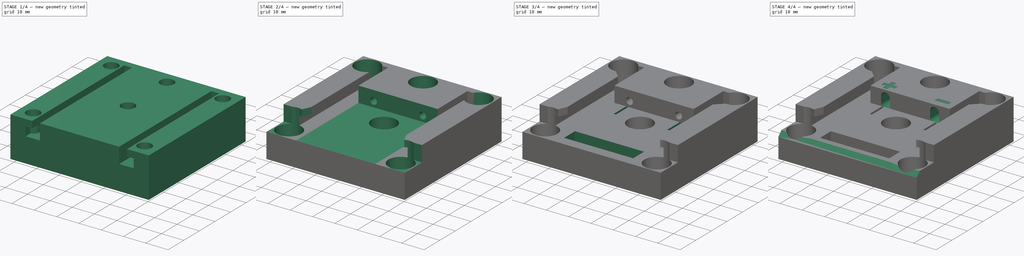
[diagram: build sequence overview — one tinted view per stage of 4, left to right]
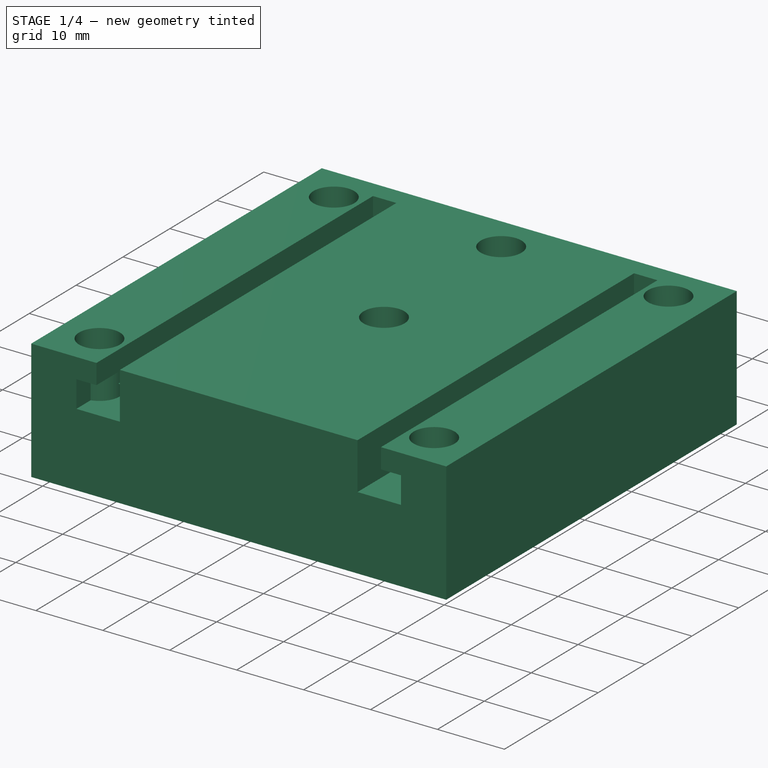
[diagram: stage 1 of 4 — iso view after this stage's code; geometry added in this stage tinted green]
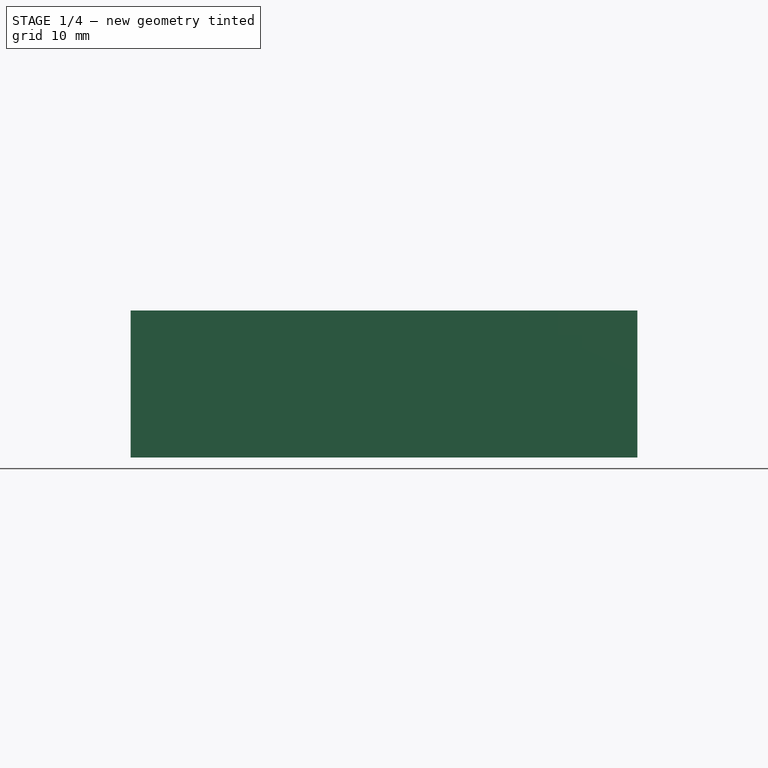
[diagram: stage 1 of 4 — front view after this stage's code; geometry added in this stage tinted green]
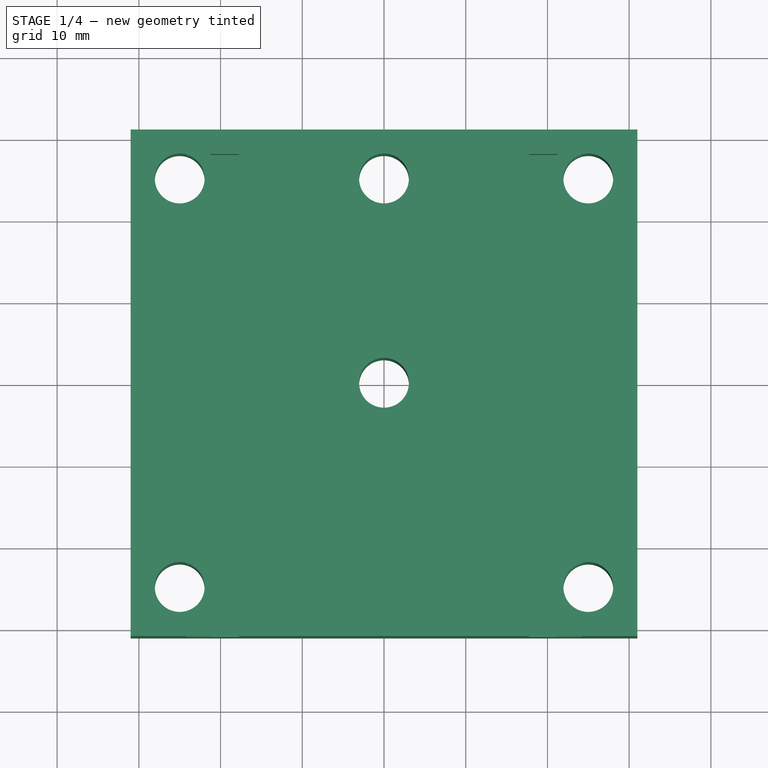
[diagram: stage 1 of 4 — top view after this stage's code; geometry added in this stage tinted green]
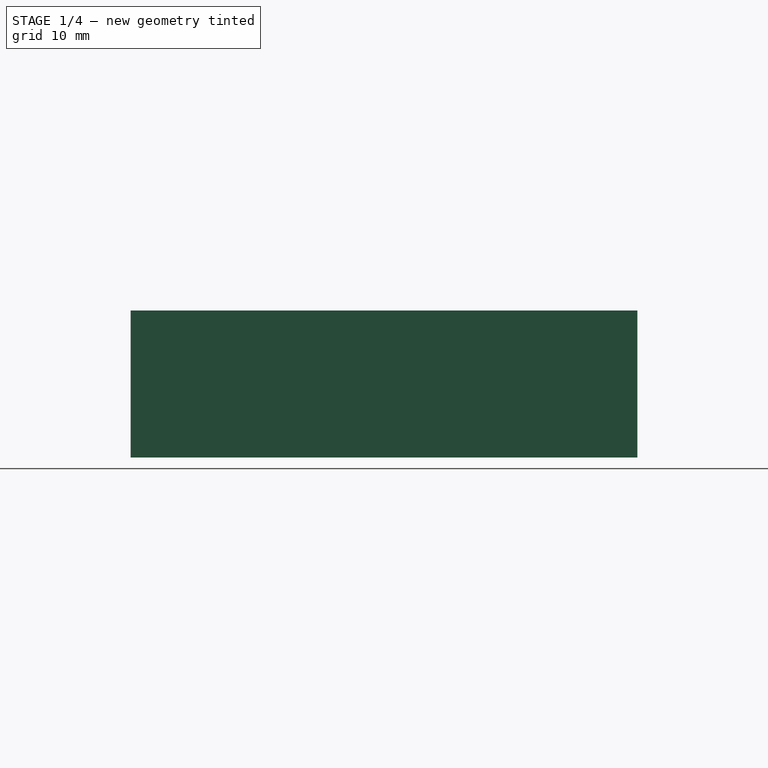
[diagram: stage 1 of 4 — right view after this stage's code; geometry added in this stage tinted green]
FCSTD DOCUMENT  (FreeCAD 0.20R)
Label: battery_adapter_einhell_x-change
License: All rights reserved
LicenseURL: http://en.wikipedia.org/wiki/All_rights_reserved
objects: Sketcher::SketchObject×11, PartDesign::Pocket×10, PartDesign::Pad×1, PartDesign::Body×1
note: 34 computed .brp shape members not serialized (recipe doc carries the construction recipe); baked Part::Feature solids carry a one-line shape summary decoded from their .brp

FEATURE [Sketcher::SketchObject] Sketch072
  FullyConstrained = true
  MapMode = 5
  Support = -> [XY_Plane027]
  sketch-geometry (4):
    g0: LineSegment StartX=-31 StartY=-31 StartZ=0 EndX=-31 EndY=31 EndZ=0
    g1: LineSegment StartX=-31 StartY=31 StartZ=0 EndX=31 EndY=31 EndZ=0
    g2: LineSegment StartX=31 StartY=31 StartZ=0 EndX=31 EndY=-31 EndZ=0
    g3: LineSegment StartX=31 StartY=-31 StartZ=0 EndX=-31 EndY=-31 EndZ=0
  constraints (9):
    c: Coincident(g0,g1)
    c: Coincident(g1,g2)
    c: Coincident(g2,g3)
    c: Coincident(g0,g3)
    c: Symmetric(g0,g0,g-1)
    c: Symmetric(g1,g2,g-1)
    c: Symmetric(g1,g0,g-2)
    c: DistanceX(g0,g1) = 62
    c: DistanceY(g2,g1) = 62
FEATURE [PartDesign::Pad] Pad012
  AllowMultiFace = false
  Direction = (0,0,1)
  Length = 18
  Length2 = 100
  Profile = -> Sketch072
  Type = 0
FEATURE [Sketcher::SketchObject] Sketch073
  FullyConstrained = true
  MapMode = 5
  Placement = pos=(0,0,0) rot=(1,0,0;3.14159rad)
  Support = -> [Pad012]
  sketch-geometry (10):
    g0: LineSegment StartX=-25 StartY=25 StartZ=0 EndX=25 EndY=25 EndZ=0
    g1: LineSegment StartX=25 StartY=25 StartZ=0 EndX=25 EndY=-25 EndZ=0
    g2: LineSegment StartX=25 StartY=-25 StartZ=0 EndX=-25 EndY=-25 EndZ=0
    g3: LineSegment StartX=-25 StartY=-25 StartZ=0 EndX=-25 EndY=25 EndZ=0
    g4: Circle CenterX=-25 CenterY=25 CenterZ=0 NormalX=0 NormalY=0 NormalZ=1 AngleXU=0 Radius=3.05
    g5: Circle CenterX=25 CenterY=25 CenterZ=0 NormalX=0 NormalY=0 NormalZ=1 AngleXU=0 Radius=3.05
    g6: Circle CenterX=-25 CenterY=-25 CenterZ=0 NormalX=0 NormalY=0 NormalZ=1 AngleXU=0 Radius=3.05
    g7: Circle CenterX=25 CenterY=-25 CenterZ=0 NormalX=0 NormalY=0 NormalZ=1 AngleXU=0 Radius=3.05
    g8: Circle CenterX=0 CenterY=0 CenterZ=0 NormalX=0 NormalY=0 NormalZ=1 AngleXU=0 Radius=3.05
    g9: Circle CenterX=0 CenterY=-25 CenterZ=0 NormalX=0 NormalY=0 NormalZ=1 AngleXU=0 Radius=3.05
  constraints (22):
    c: Coincident(g0,g1)
    c: Coincident(g1,g2)
    c: Coincident(g2,g3)
    c: Coincident(g3,g0)
    c: Symmetric(g0,g0,g-2)
    c: Symmetric(g0,g2,g-1)
    c: Symmetric(g1,g0,g-1)
    c: DistanceY(g1,g0) = 50
    c: DistanceX(g0,g0) = 50
    c: Coincident(g4,g0)
    c: Coincident(g5,g0)
    c: Coincident(g6,g2)
    c: Coincident(g7,g1)
    c: Equal(g4,g5)
    c: Equal(g5,g7)
    c: Equal(g4,g6)
    c: Diameter(g4) = 6.1
    c: Coincident(g8,g-1)
    c: Equal(g4,g8)
    c: PointOnObject(g9,g2)
    c: Equal(g6,g9)
    c: PointOnObject(g9,g-2)
FEATURE [PartDesign::Pocket] Pocket058
  AllowMultiFace = false
  BaseFeature = -> Pad012
  Direction = (0,0,1)
  Length = 5
  Length2 = 100
  Profile = -> Sketch073
  Type = 1
FEATURE [Sketcher::SketchObject] Sketch074
  FullyConstrained = true
  MapMode = 5
  Placement = pos=(0,-31,0) rot=(1,0,0;1.5708rad)
  Support = -> [Pocket058]
  sketch-geometry (12):
    g0: LineSegment StartX=-21.25 StartY=20 StartZ=0 EndX=-21.25 EndY=15 EndZ=0
    g1: LineSegment StartX=-21.25 StartY=15 StartZ=0 EndX=-24.25 EndY=15 EndZ=0
    g2: LineSegment StartX=-24.25 StartY=15 StartZ=0 EndX=-24.25 EndY=11 EndZ=0
    g3: LineSegment StartX=-24.25 StartY=11 StartZ=0 EndX=-17.75 EndY=11 EndZ=0
    g4: LineSegment StartX=-17.75 StartY=11 StartZ=0 EndX=-17.75 EndY=18 EndZ=0
    g5: LineSegment StartX=-17.75 StartY=18 StartZ=0 EndX=17.75 EndY=18 EndZ=0
    g6: LineSegment StartX=17.75 StartY=18 StartZ=0 EndX=17.75 EndY=11 EndZ=0
    g7: LineSegment StartX=17.75 StartY=11 StartZ=0 EndX=24.25 EndY=11 EndZ=0
    g8: LineSegment StartX=24.25 StartY=11 StartZ=0 EndX=24.25 EndY=15 EndZ=0
    g9: LineSegment StartX=24.25 StartY=15 StartZ=0 EndX=21.25 EndY=15 EndZ=0
    g10: LineSegment StartX=21.25 StartY=15 StartZ=0 EndX=21.25 EndY=20 EndZ=0
    g11: LineSegment StartX=21.25 StartY=20 StartZ=0 EndX=-21.25 EndY=20 EndZ=0
  constraints (32):
    c: Vertical(g0)
    c: Coincident(g0,g1)
    c: Coincident(g1,g2)
    c: Vertical(g2)
    c: Coincident(g2,g3)
    c: Horizontal(g3)
    c: Coincident(g3,g4)
    c: Vertical(g4)
    c: Coincident(g4,g5)
    c: Coincident(g5,g6)
    c: Coincident(g6,g7)
    c: Coincident(g7,g8)
    c: Coincident(g8,g9)
    c: Coincident(g9,g10)
    c: Coincident(g10,g11)
    c: Horizontal(g11)
    c: Coincident(g11,g0)
    c: Horizontal(g1)
    c: Horizontal(g9)
    c: Vertical(g10)
    c: DistanceX(g2,g3) = 6.5
    c: DistanceX(g9,g8) = 3
    c: DistanceX(g1,g0) = 3
    c: DistanceX(g4,g5) = 35.5
    c: Symmetric(g4,g5,g-2)
    c: DistanceY(g-1,g5) = 18
    c: DistanceY(g7,g8) = 4
    c: DistanceY(g6,g5) = 7
    c: DistanceY(g9,g10) = 5
    c: Symmetric(g3,g6,g-2)
    c: Symmetric(g2,g7,g-2)
    c: Symmetric(g8,g1,g-2)
FEATURE [PartDesign::Pocket] Pocket059
  AllowMultiFace = false
  BaseFeature = -> Pocket058
  Direction = (0,1,-2e-16)
  Length = 59
  Length2 = 100
  Profile = -> Sketch074
  Type = 0
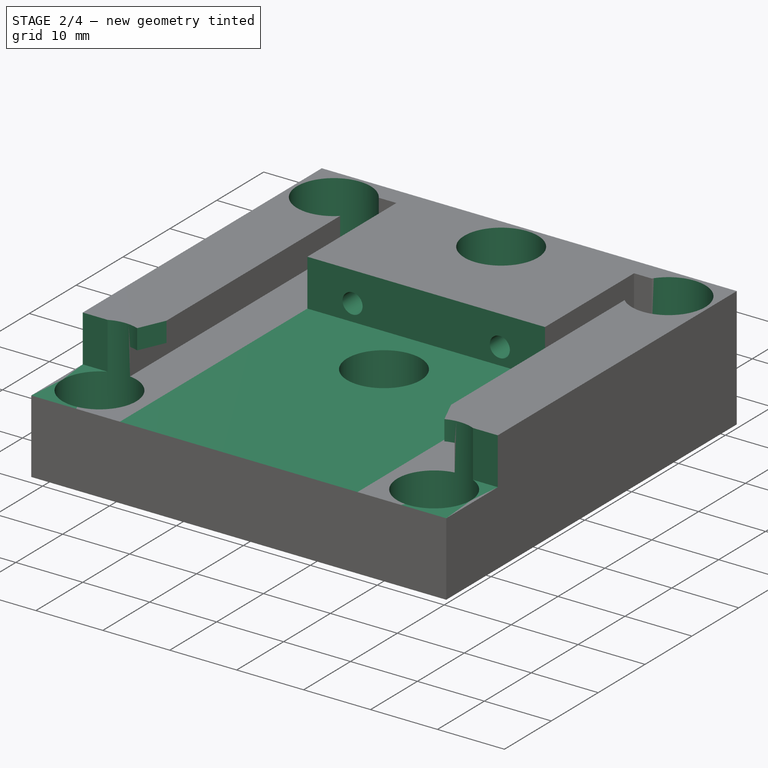
[diagram: stage 2 of 4 — iso view after this stage's code; geometry added in this stage tinted green]
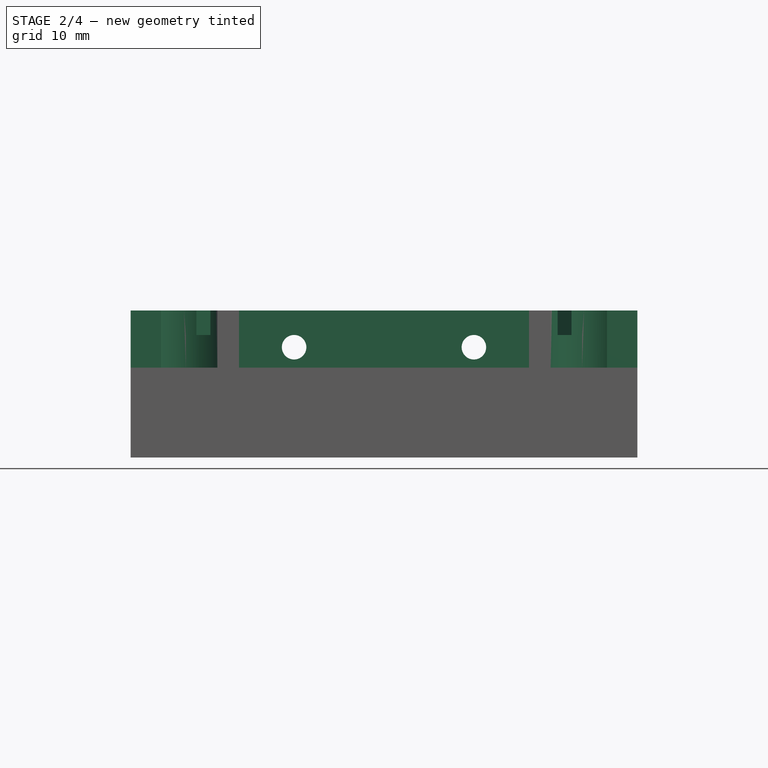
[diagram: stage 2 of 4 — front view after this stage's code; geometry added in this stage tinted green]
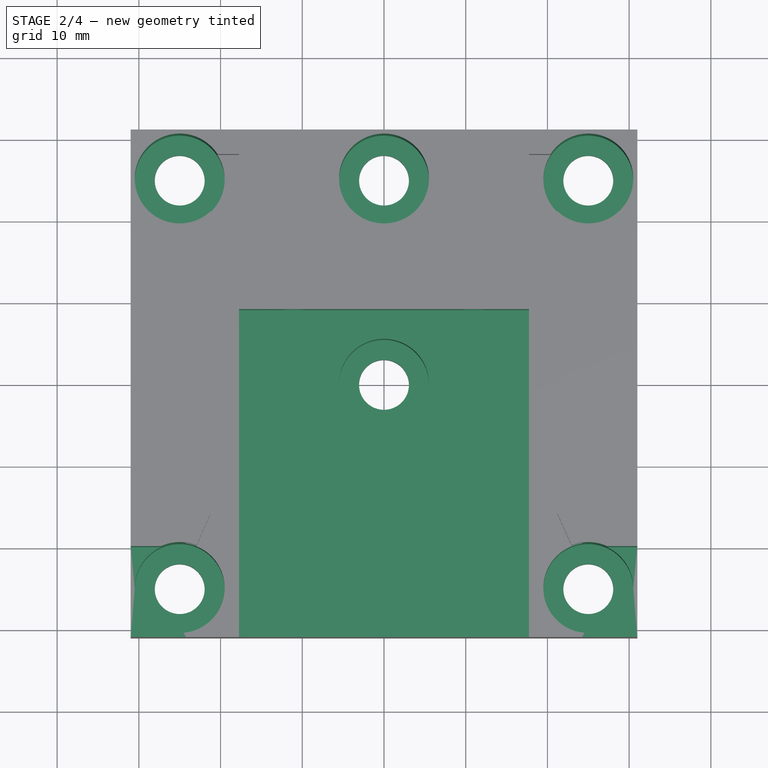
[diagram: stage 2 of 4 — top view after this stage's code; geometry added in this stage tinted green]
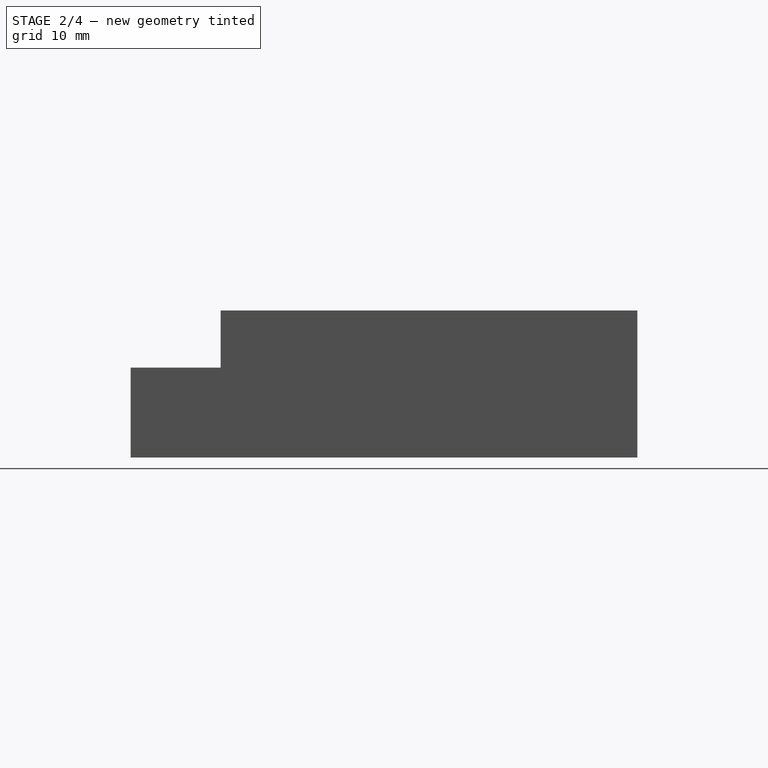
[diagram: stage 2 of 4 — right view after this stage's code; geometry added in this stage tinted green]
FEATURE [Sketcher::SketchObject] Sketch075
  FullyConstrained = true
  MapMode = 5
  Placement = pos=(0,0,18) rot=(0,0,1;0rad)
  Support = -> [Pocket059]
  sketch-geometry (10):
    g0: LineSegment StartX=-19 StartY=-11 StartZ=0 EndX=-19 EndY=9 EndZ=0
    g1: LineSegment StartX=-19 StartY=9 StartZ=0 EndX=19 EndY=9 EndZ=0
    g2: LineSegment StartX=19 StartY=9 StartZ=0 EndX=19 EndY=-11 EndZ=0
    g3: LineSegment StartX=31 StartY=-31 StartZ=0 EndX=-31 EndY=-31 EndZ=0
    g4: LineSegment StartX=-19 StartY=-11 StartZ=0 EndX=-23 EndY=-20 EndZ=0
    g5: LineSegment StartX=-23 StartY=-20 StartZ=0 EndX=-31 EndY=-20 EndZ=0
    g6: LineSegment StartX=-31 StartY=-20 StartZ=0 EndX=-31 EndY=-31 EndZ=0
    g7: LineSegment StartX=19 StartY=-11 StartZ=0 EndX=23 EndY=-20 EndZ=0
    g8: LineSegment StartX=23 StartY=-20 StartZ=0 EndX=31 EndY=-20 EndZ=0
    g9: LineSegment StartX=31 StartY=-20 StartZ=0 EndX=31 EndY=-31 EndZ=0
  constraints (25):
    c: Coincident(g0,g1)
    c: Coincident(g1,g2)
    c: Vertical(g2)
    c: Symmetric(g0,g1,g-2)
    c: Symmetric(g0,g2,g-2)
    c: Symmetric(g3,g3,g-2)
    c: DistanceX(g0,g1) = 38
    c: DistanceX(g3,g3) = 62
    c: DistanceY(g3,g2) = 20
    c: DistanceY(g-1,g1) = 9
    c: DistanceY(g3,g-1) = 31
    c: Coincident(g4,g5)
    c: Coincident(g5,g6)
    c: Coincident(g7,g8)
    c: Coincident(g8,g9)
    c: Coincident(g4,g0)
    c: Coincident(g7,g2)
    c: Coincident(g6,g3)
    c: Coincident(g9,g3)
    c: Horizontal(g8)
    c: Vertical(g9)
    c: Symmetric(g8,g5,g-2)
    c: Symmetric(g4,g7,g-2)
    c: DistanceY(g3,g8) = 11
    c: DistanceX(g7,g8) = 8
FEATURE [PartDesign::Pocket] Pocket060
  AllowMultiFace = false
  BaseFeature = -> Pocket059
  Direction = (0,0,-1)
  Length = 7
  Length2 = 100
  Profile = -> Sketch075
  Type = 0
FEATURE [Sketcher::SketchObject] Sketch077
  FullyConstrained = true
  MapMode = 5
  Placement = pos=(0,31,0) rot=(0,0.707107,0.707107;3.14159rad)
  sketch-geometry (2):
    g0: Circle CenterX=-11 CenterY=13.5 CenterZ=0 NormalX=0 NormalY=0 NormalZ=1 AngleXU=0 Radius=1.5
    g1: Circle CenterX=11 CenterY=13.5 CenterZ=0 NormalX=0 NormalY=0 NormalZ=1 AngleXU=0 Radius=1.5
  constraints (5):
    c: Symmetric(g0,g1,g-2)
    c: DistanceX(g0,g1) = 22
    c: Diameter(g1) = 3
    c: Equal(g0,g1)
    c: DistanceY(g-1,g1) = 13.5
FEATURE [PartDesign::Pocket] Pocket062
  AllowMultiFace = false
  BaseFeature = -> Pocket060
  Direction = (0,-1,2e-16)
  Length = 22
  Length2 = 100
  Profile = -> Sketch077
  Type = 0
FEATURE [Sketcher::SketchObject] Sketch078
  FullyConstrained = true
  MapMode = 5
  Placement = pos=(0,0,18) rot=(0,0,1;0rad)
  Support = -> [Pocket062]
  sketch-geometry (10):
    g0: LineSegment StartX=-25 StartY=25 StartZ=0 EndX=25 EndY=25 EndZ=0
    g1: LineSegment StartX=25 StartY=25 StartZ=0 EndX=25 EndY=-25 EndZ=0
    g2: LineSegment StartX=25 StartY=-25 StartZ=0 EndX=-25 EndY=-25 EndZ=0
    g3: LineSegment StartX=-25 StartY=-25 StartZ=0 EndX=-25 EndY=25 EndZ=0
    g4: Circle CenterX=-25 CenterY=25 CenterZ=0 NormalX=0 NormalY=0 NormalZ=1 AngleXU=0 Radius=5.5
    g5: Circle CenterX=-25 CenterY=-25 CenterZ=0 NormalX=0 NormalY=0 NormalZ=1 AngleXU=0 Radius=5.5
    g6: Circle CenterX=25 CenterY=25 CenterZ=0 NormalX=0 NormalY=0 NormalZ=1 AngleXU=0 Radius=5.5
    g7: Circle CenterX=25 CenterY=-25 CenterZ=0 NormalX=0 NormalY=0 NormalZ=1 AngleXU=0 Radius=5.5
    g8: Circle CenterX=0 CenterY=0 CenterZ=0 NormalX=0 NormalY=0 NormalZ=1 AngleXU=0 Radius=5.5
    g9: Circle CenterX=0 CenterY=25 CenterZ=0 NormalX=0 NormalY=0 NormalZ=1 AngleXU=0 Radius=5.5
  constraints (22):
    c: Coincident(g0,g1)
    c: Coincident(g1,g2)
    c: Coincident(g2,g3)
    c: Coincident(g3,g0)
    c: Symmetric(g0,g0,g-2)
    c: Symmetric(g2,g0,g-1)
    c: Symmetric(g0,g1,g-1)
    c: DistanceX(g0,g0) = 50
    c: DistanceY(g1,g0) = 50
    c: Coincident(g4,g0)
    c: Coincident(g2,g5)
    c: Coincident(g7,g1)
    c: Coincident(g6,g0)
    c: Equal(g4,g6)
    c: Equal(g6,g7)
    c: Equal(g7,g5)
    c: Diameter(g6) = 11
    c: Coincident(g8,g-1)
    c: Equal(g4,g8)
    c: PointOnObject(g9,g0)
    c: PointOnObject(g9,g-2)
    c: Equal(g4,g9)
FEATURE [PartDesign::Pocket] Pocket063
  AllowMultiFace = false
  BaseFeature = -> Pocket062
  Direction = (0,0,-1)
  Length = 15
  Length2 = 100
  Profile = -> Sketch078
  Type = 0
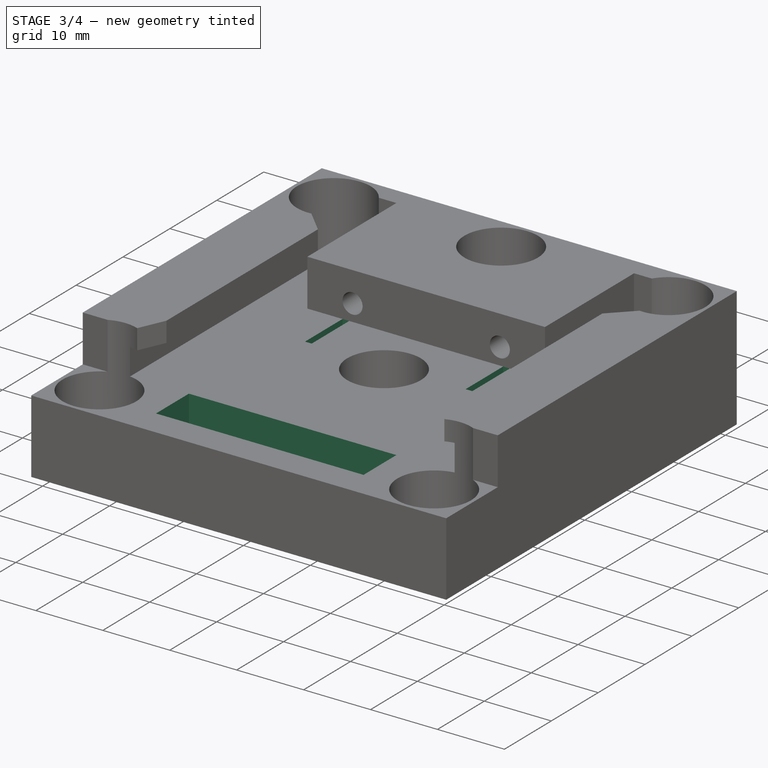
[diagram: stage 3 of 4 — iso view after this stage's code; geometry added in this stage tinted green]
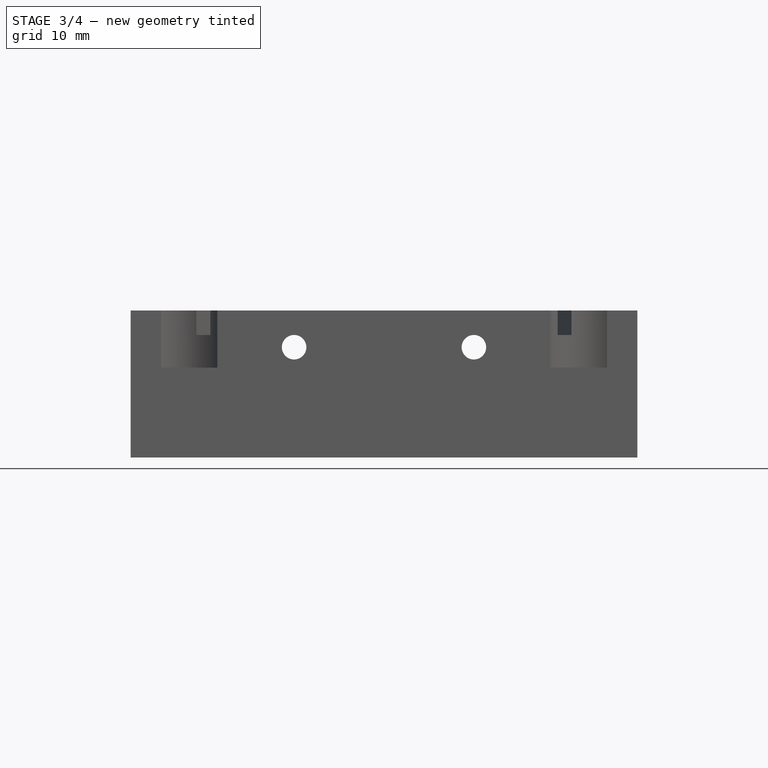
[diagram: stage 3 of 4 — front view after this stage's code; geometry added in this stage tinted green]
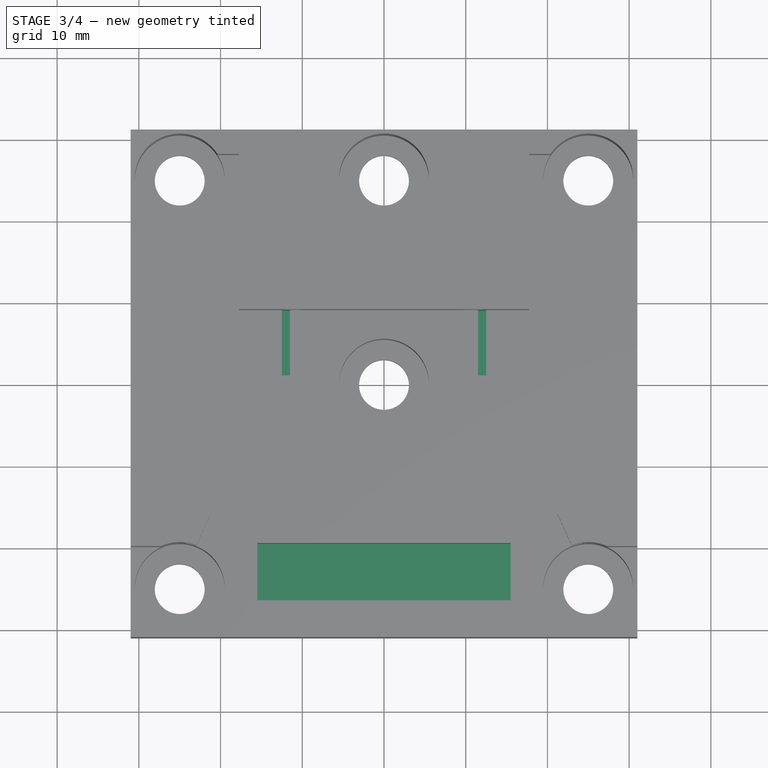
[diagram: stage 3 of 4 — top view after this stage's code; geometry added in this stage tinted green]
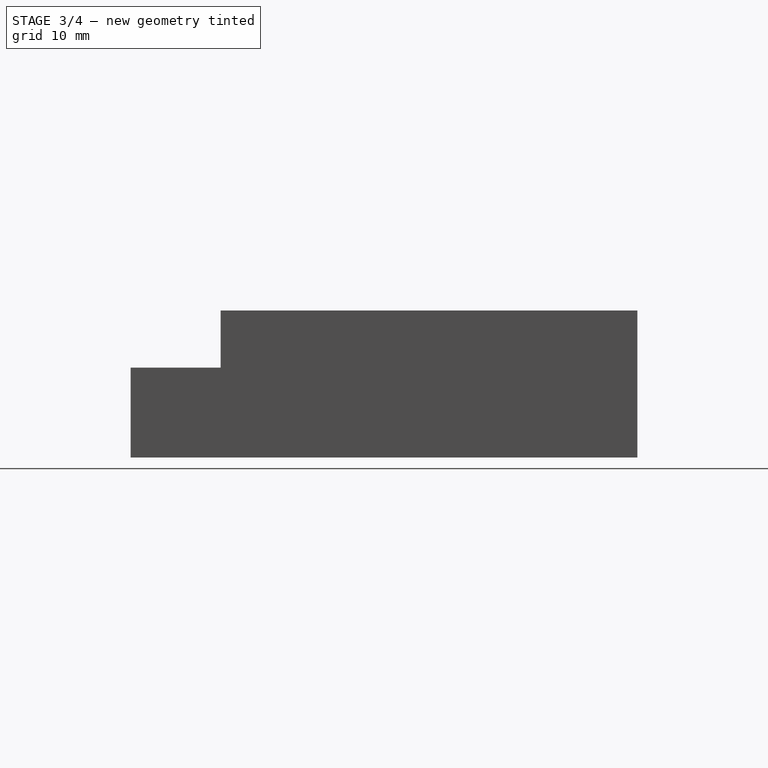
[diagram: stage 3 of 4 — right view after this stage's code; geometry added in this stage tinted green]
FEATURE [Sketcher::SketchObject] Sketch079
  FullyConstrained = true
  MapMode = 5
  Placement = pos=(0,0,18) rot=(0,0,1;0rad)
  sketch-geometry (6):
    g0: LineSegment StartX=-25 StartY=20 StartZ=0 EndX=-20 EndY=15 EndZ=0
    g1: LineSegment StartX=-20 StartY=15 StartZ=0 EndX=-20 EndY=25 EndZ=0
    g2: LineSegment StartX=-20 StartY=25 StartZ=0 EndX=-25 EndY=20 EndZ=0
    g3: LineSegment StartX=20 StartY=25 StartZ=0 EndX=20 EndY=15 EndZ=0
    g4: LineSegment StartX=20 StartY=15 StartZ=0 EndX=25 EndY=20 EndZ=0
    g5: LineSegment StartX=25 StartY=20 StartZ=0 EndX=20 EndY=25 EndZ=0
  constraints (15):
    c: Coincident(g0,g1)
    c: Vertical(g1)
    c: Coincident(g1,g2)
    c: Coincident(g3,g4)
    c: Coincident(g4,g5)
    c: Coincident(g2,g0)
    c: Coincident(g3,g5)
    c: DistanceY(g-1,g0) = 20
    c: DistanceY(g0,g0) = 5
    c: DistanceY(g0,g1) = 5
    c: DistanceX(g0,g0) = 5
    c: Symmetric(g1,g3,g-2)
    c: Symmetric(g4,g0,g-2)
    c: Symmetric(g3,g0,g-2)
    c: DistanceX(g0,g4) = 50
FEATURE [Sketcher::SketchObject] Sketch076
  FullyConstrained = true
  MapMode = 5
  Placement = pos=(0,0,18) rot=(0,0,1;0rad)
  Support = -> [Pocket060]
  sketch-geometry (12):
    g0: LineSegment StartX=-15.5 StartY=-19.5 StartZ=0 EndX=15.5 EndY=-19.5 EndZ=0
    g1: LineSegment StartX=15.5 StartY=-19.5 StartZ=0 EndX=15.5 EndY=-26.5 EndZ=0
    g2: LineSegment StartX=15.5 StartY=-26.5 StartZ=0 EndX=-15.5 EndY=-26.5 EndZ=0
    g3: LineSegment StartX=-15.5 StartY=-26.5 StartZ=0 EndX=-15.5 EndY=-19.5 EndZ=0
    g4: LineSegment StartX=-12.5 StartY=9 StartZ=0 EndX=-11.5 EndY=9 EndZ=0
    g5: LineSegment StartX=-11.5 StartY=9 StartZ=0 EndX=-11.5 EndY=1 EndZ=0
    g6: LineSegment StartX=-11.5 StartY=1 StartZ=0 EndX=-12.5 EndY=1 EndZ=0
    g7: LineSegment StartX=-12.5 StartY=1 StartZ=0 EndX=-12.5 EndY=9 EndZ=0
    g8: LineSegment StartX=11.5 StartY=9 StartZ=0 EndX=12.5 EndY=9 EndZ=0
    g9: LineSegment StartX=12.5 StartY=9 StartZ=0 EndX=12.5 EndY=1 EndZ=0
    g10: LineSegment StartX=12.5 StartY=1 StartZ=0 EndX=11.5 EndY=1 EndZ=0
    g11: LineSegment StartX=11.5 StartY=1 StartZ=0 EndX=11.5 EndY=9 EndZ=0
  constraints (30):
    c: Coincident(g0,g1)
    c: Coincident(g1,g2)
    c: Coincident(g2,g3)
    c: Coincident(g3,g0)
    c: Symmetric(g0,g0,g-2)
    c: Symmetric(g1,g2,g-2)
    c: Vertical(g1)
    c: DistanceX(g0,g0) = 31
    c: DistanceY(g1,g0) = 7
    c: DistanceY(g1,g-1) = 26.5
    c: Coincident(g4,g5)
    c: Coincident(g5,g6)
    c: Coincident(g6,g7)
    c: Coincident(g7,g4)
    c: Horizontal(g4)
    c: Horizontal(g6)
    c: Vertical(g5)
    c: Vertical(g7)
    c: Coincident(g8,g9)
    c: Coincident(g9,g10)
    c: Coincident(g10,g11)
    c: Coincident(g11,g8)
    c: Symmetric(g4,g8,g-2)
    c: Symmetric(g4,g8,g-2)
    c: Symmetric(g5,g10,g-2)
    c: Symmetric(g6,g9,g-2)
    c: DistanceY(g6,g4) = 8
    c: DistanceY(g-1,g4) = 9
    c: DistanceX(g4,g4) = 1
    c: DistanceX(g4,g8) = 23
FEATURE [PartDesign::Pocket] Pocket065
  AllowMultiFace = false
  BaseFeature = -> Pocket063
  Direction = (0,0,-1)
  Length = 11
  Length2 = 100
  Profile = -> Sketch076
  Type = 0
FEATURE [Sketcher::SketchObject] Sketch080
  FullyConstrained = true
  MapMode = 5
  Placement = pos=(0,0,0) rot=(0.57735,0.57735,0.57735;2.0944rad)
  Support = -> [YZ_Plane027]
  sketch-geometry (3):
    g0: LineSegment StartX=-31 StartY=11 StartZ=0 EndX=-31 EndY=9 EndZ=0
    g1: LineSegment StartX=-31 StartY=9 StartZ=0 EndX=-29 EndY=11 EndZ=0
    g2: LineSegment StartX=-29 StartY=11 StartZ=0 EndX=-31 EndY=11 EndZ=0
  constraints (9):
    c: Coincident(g0,g1)
    c: Coincident(g1,g2)
    c: Coincident(g2,g0)
    c: Vertical(g0)
    c: Horizontal(g2)
    c: DistanceX(g0,g1) = 2
    c: DistanceY(g0,g0) = 2
    c: DistanceX(g0,g-1) = 31
    c: DistanceY(g-1,g0) = 11
FEATURE [PartDesign::Pocket] Pocket
  BaseFeature = -> Pocket065
  Direction = (0,0,-1)
  Length = 7
  Length2 = 5
  Profile = -> Sketch079
  ReferenceAxis = -> Sketch079 [N_Axis]
  Type = 0
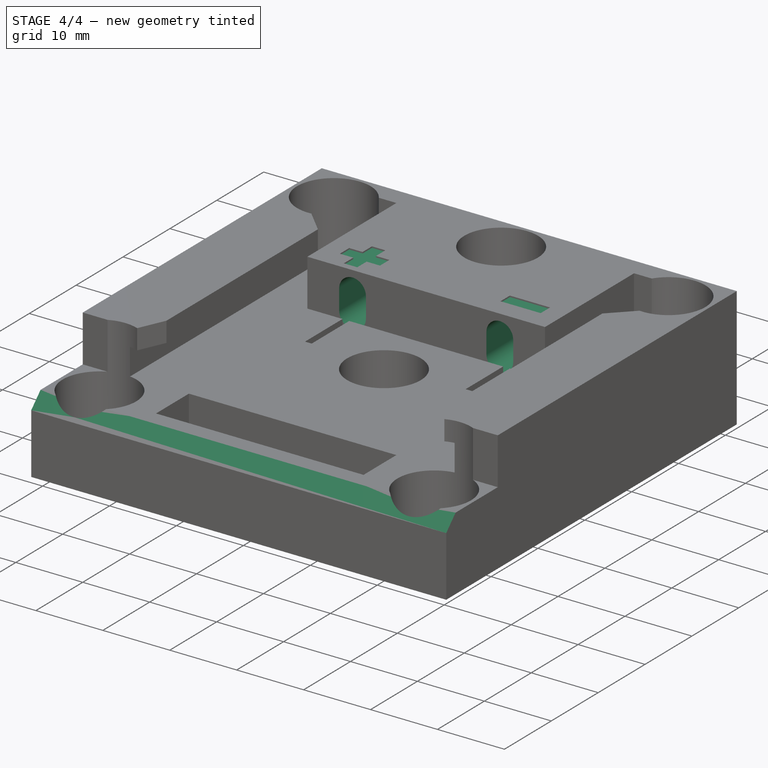
[diagram: stage 4 of 4 — iso view after this stage's code; geometry added in this stage tinted green]
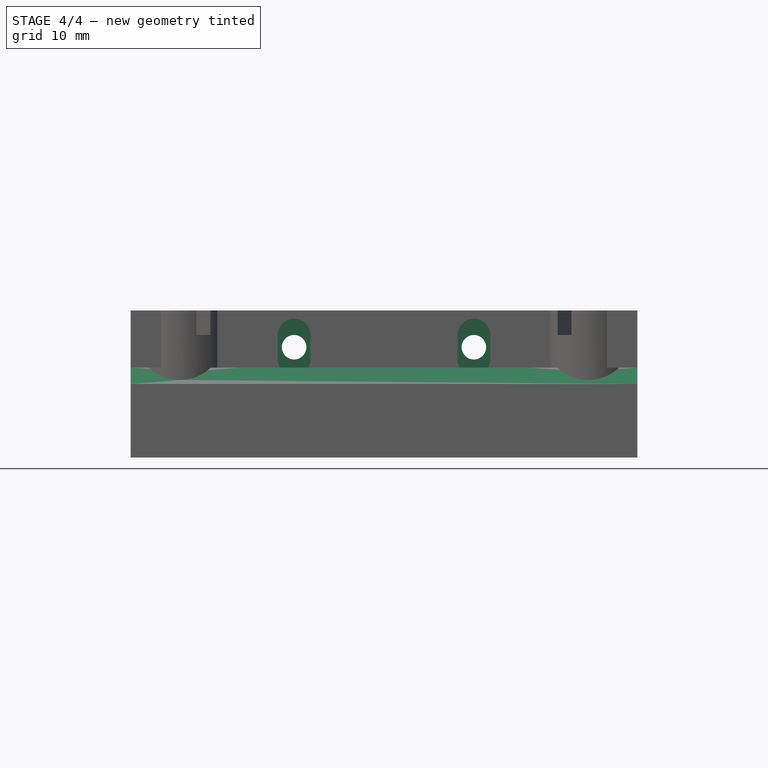
[diagram: stage 4 of 4 — front view after this stage's code; geometry added in this stage tinted green]
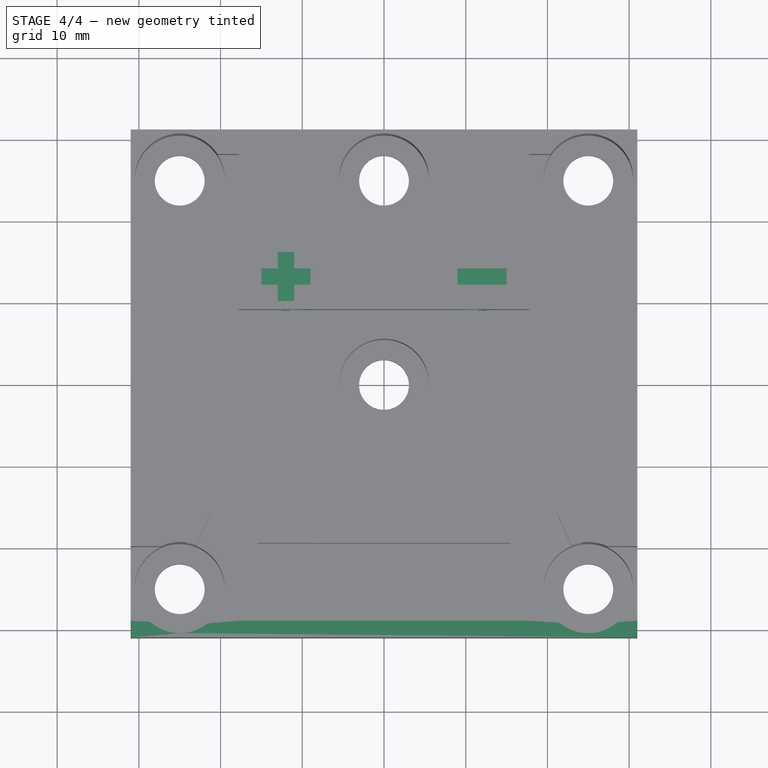
[diagram: stage 4 of 4 — top view after this stage's code; geometry added in this stage tinted green]
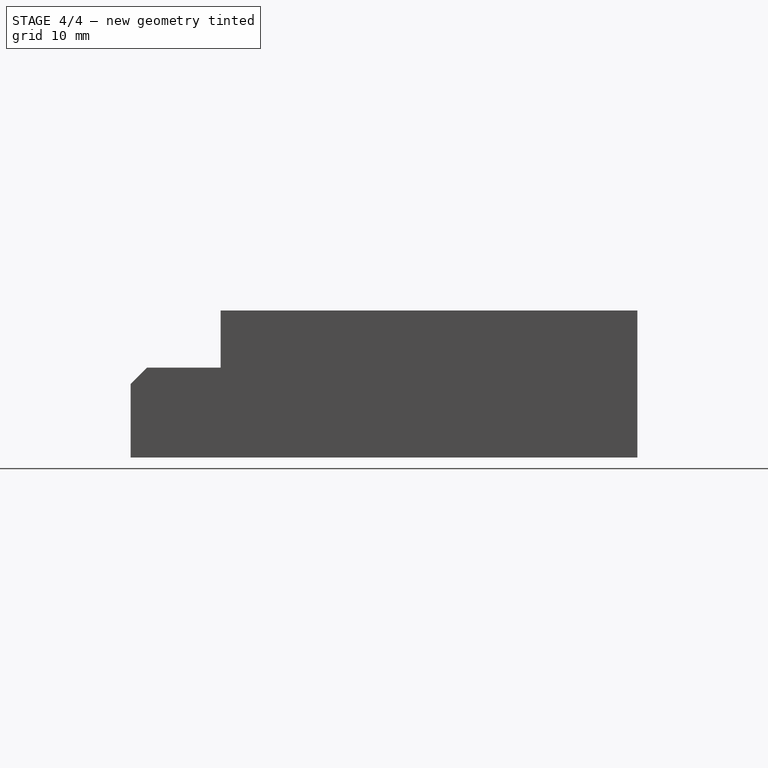
[diagram: stage 4 of 4 — right view after this stage's code; geometry added in this stage tinted green]
FEATURE [PartDesign::Pocket] Pocket068
  BaseFeature = -> Pocket
  Direction = (-1,2e-16,-3e-16)
  Length = 5
  Length2 = 5
  Midplane = true
  Profile = -> Sketch080
  ReferenceAxis = -> Sketch080 [N_Axis]
  Type = 1
FEATURE [Sketcher::SketchObject] Sketch081
  FullyConstrained = true
  MapMode = 5
  Placement = pos=(0,9,0) rot=(1,0,0;1.5708rad)
  Support = -> [Pocket068]
  sketch-geometry (8):
    g0: ArcOfCircle CenterX=-11 CenterY=15 CenterZ=0 NormalX=0 NormalY=0 NormalZ=1 AngleXU=0 Radius=2 StartAngle=5e-16 EndAngle=3.14159
    g1: ArcOfCircle CenterX=-11 CenterY=12 CenterZ=0 NormalX=0 NormalY=0 NormalZ=1 AngleXU=0 Radius=2 StartAngle=3.14159 EndAngle=6.28319
    g2: LineSegment StartX=-13 StartY=15 StartZ=0 EndX=-13 EndY=12 EndZ=0
    g3: LineSegment StartX=-9 StartY=15 StartZ=0 EndX=-9 EndY=12 EndZ=0
    g4: ArcOfCircle CenterX=11 CenterY=15 CenterZ=0 NormalX=0 NormalY=0 NormalZ=1 AngleXU=0 Radius=2 StartAngle=0 EndAngle=3.14159
    g5: ArcOfCircle CenterX=11 CenterY=12 CenterZ=0 NormalX=0 NormalY=0 NormalZ=1 AngleXU=0 Radius=2 StartAngle=3.14159 EndAngle=6.28319
    g6: LineSegment StartX=9 StartY=15 StartZ=0 EndX=9 EndY=12 EndZ=0
    g7: LineSegment StartX=13 StartY=15 StartZ=0 EndX=13 EndY=12 EndZ=0
  constraints (18):
    c: Tangent(g0,g3) = 1.5708
    c: Tangent(g0,g2) = -1.5708
    c: Tangent(g2,g1) = -1.5708
    c: Tangent(g3,g1) = 1.5708
    c: Vertical(g2)
    c: Equal(g0,g1)
    c: Tangent(g4,g7) = 1.5708
    c: Tangent(g4,g6) = -1.5708
    c: Tangent(g6,g5) = -1.5708
    c: Tangent(g7,g5) = 1.5708
    c: Vertical(g6)
    c: Symmetric(g0,g4,g-2)
    c: Symmetric(g1,g5,g-2)
    c: Equal(g0,g4)
    c: Diameter(g0) = 4
    c: DistanceY(g1,g0) = 3
    c: DistanceX(g0,g4) = 22
    c: DistanceY(g-1,g1) = 12
FEATURE [PartDesign::Pocket] Pocket069
  BaseFeature = -> Pocket068
  Direction = (0,1,-2e-16)
  Length = 16
  Length2 = 5
  Profile = -> Sketch081
  ReferenceAxis = -> Sketch081 [N_Axis]
  Type = 0
FEATURE [Sketcher::SketchObject] Sketch
  FullyConstrained = true
  MapMode = 5
  Placement = pos=(0,0,18) rot=(0,0,1;0rad)
  Support = -> [Pocket069]
  sketch-geometry (16):
    g0: LineSegment StartX=-11 StartY=16 StartZ=0 EndX=-13 EndY=16 EndZ=0
    g1: LineSegment StartX=-13 StartY=16 StartZ=0 EndX=-13 EndY=14 EndZ=0
    g2: LineSegment StartX=-13 StartY=14 StartZ=0 EndX=-15 EndY=14 EndZ=0
    g3: LineSegment StartX=-15 StartY=14 StartZ=0 EndX=-15 EndY=12 EndZ=0
    g4: LineSegment StartX=-15 StartY=12 StartZ=0 EndX=-13 EndY=12 EndZ=0
    g5: LineSegment StartX=-13 StartY=12 StartZ=0 EndX=-13 EndY=10 EndZ=0
    g6: LineSegment StartX=-13 StartY=10 StartZ=0 EndX=-11 EndY=10 EndZ=0
    g7: LineSegment StartX=-11 StartY=10 StartZ=0 EndX=-11 EndY=12 EndZ=0
    g8: LineSegment StartX=-11 StartY=12 StartZ=0 EndX=-9 EndY=12 EndZ=0
    g9: LineSegment StartX=-9 StartY=12 StartZ=0 EndX=-9 EndY=14 EndZ=0
    g10: LineSegment StartX=-9 StartY=14 StartZ=0 EndX=-11 EndY=14 EndZ=0
    g11: LineSegment StartX=-11 StartY=14 StartZ=0 EndX=-11 EndY=16 EndZ=0
    g12: LineSegment StartX=9 StartY=14 StartZ=0 EndX=9 EndY=12 EndZ=0
    g13: LineSegment StartX=9 StartY=12 StartZ=0 EndX=15 EndY=12 EndZ=0
    g14: LineSegment StartX=15 StartY=12 StartZ=0 EndX=15 EndY=14 EndZ=0
    g15: LineSegment StartX=15 StartY=14 StartZ=0 EndX=9 EndY=14 EndZ=0
  constraints (44):
    c: Coincident(g0,g1)
    c: Vertical(g1)
    c: Coincident(g1,g2)
    c: Coincident(g2,g3)
    c: Coincident(g3,g4)
    c: Horizontal(g4)
    c: Coincident(g4,g5)
    c: Coincident(g5,g6)
    c: Coincident(g6,g7)
    c: Coincident(g7,g8)
    c: Coincident(g8,g9)
    c: Vertical(g9)
    c: Coincident(g9,g10)
    c: Coincident(g10,g11)
    c: Coincident(g11,g0)
    c: Coincident(g12,g13)
    c: Coincident(g13,g14)
    c: Coincident(g14,g15)
    c: Coincident(g15,g12)
    c: Vertical(g3)
    c: Vertical(g5)
    c: Vertical(g7)
    c: Vertical(g11)
    c: Horizontal(g2)
    c: Horizontal(g10)
    c: Horizontal(g8)
    c: Horizontal(g6)
    c: Horizontal(g0)
    c: DistanceX(g2,g2) = 2
    c: DistanceX(g10,g10) = 2
    c: DistanceX(g0,g0) = 2
    c: DistanceX(g4,g1) = 0
    c: DistanceX(g10,g7) = 0
    c: DistanceY(g3,g3) = 2
    c: DistanceY(g5,g5) = 2
    c: DistanceY(g1,g1) = 2
    c: DistanceY(g1,g10) = 0
    c: DistanceY(g7,g4) = 0
    c: Symmetric(g9,g12,g-2)
    c: Symmetric(g8,g12,g-2)
    c: Symmetric(g3,g13,g-2)
    c: Symmetric(g2,g14,g-2)
    c: DistanceX(g8,g12) = 18
    c: DistanceY(g-1,g6) = 10
FEATURE [PartDesign::Pocket] Pocket070
  BaseFeature = -> Pocket069
  Direction = (0,0,-1)
  Length = 0.2
  Length2 = 5
  Profile = -> Sketch
  ReferenceAxis = -> Sketch [N_Axis]
  Type = 0
FEATURE [PartDesign::Body] Body012  label="battery_adapter_einhell_x-change"
  Group = -> [Sketch072,Pad012,Sketch073,Pocket058,Sketch074,Pocket059,Sketch075,Pocket060,Sketch077,Pocket062,Sketch078,Pocket063,Sketch079,Sketch076,Pocket065,Sketch080,Sketch081,Pocket,Pocket068,Pocket069,Sketch,Pocket070]
  Origin = -> Origin027
  Tip = -> Pocket070
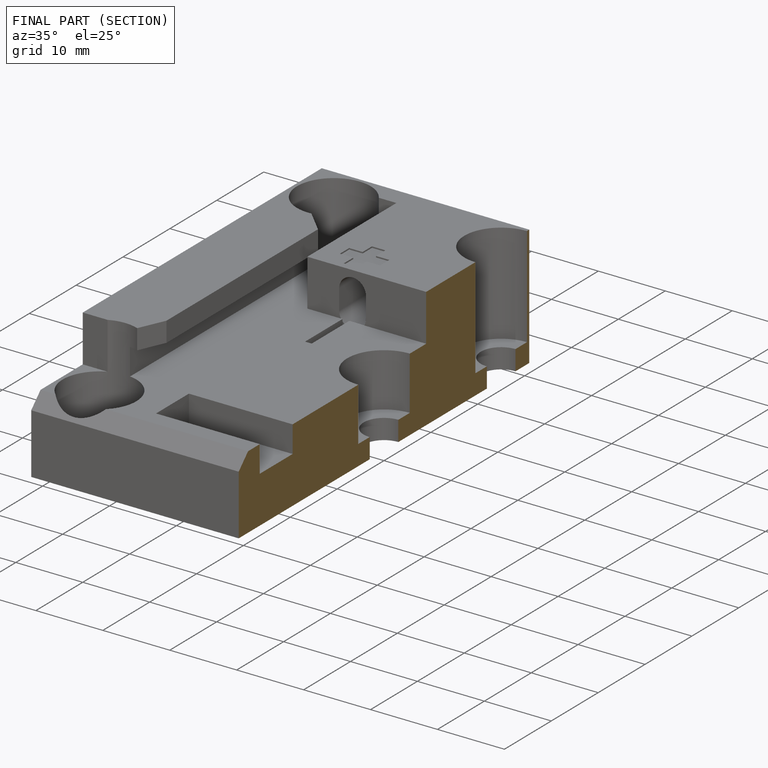
[diagram: finished part — half-section view (interior)]
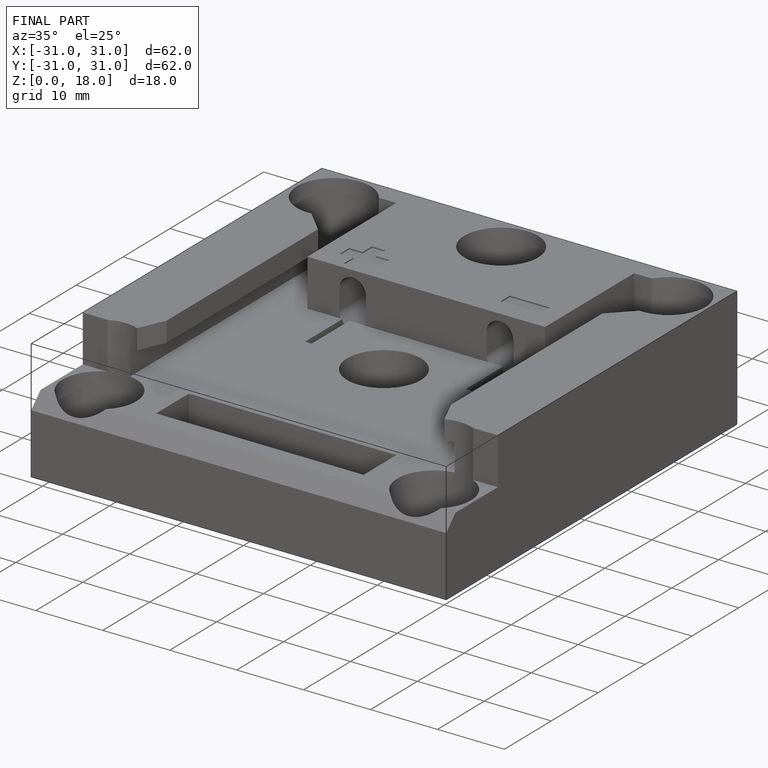
[diagram: finished part — iso view with bounding-box wireframe]
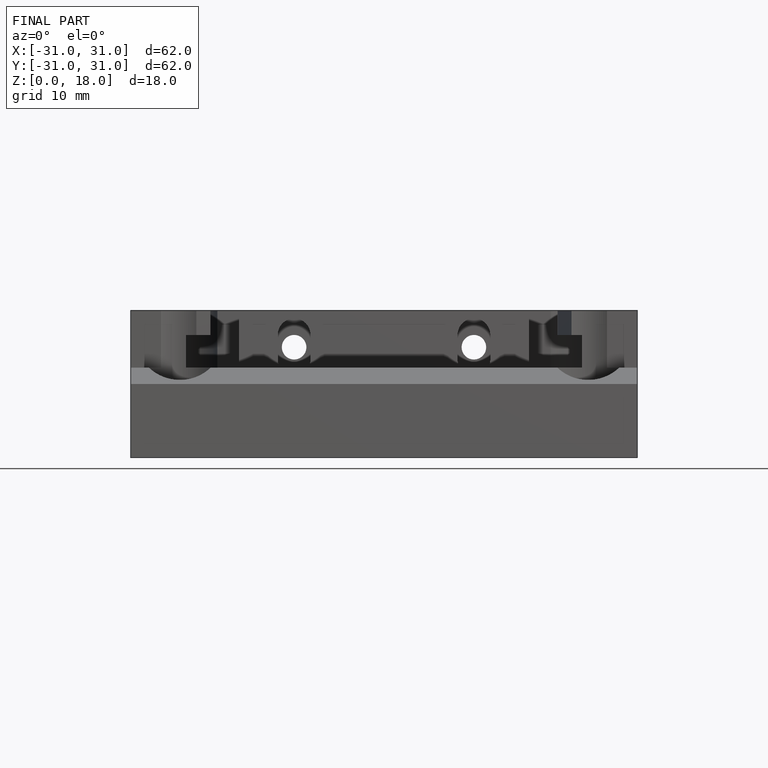
[diagram: finished part — front view with bounding-box wireframe]
